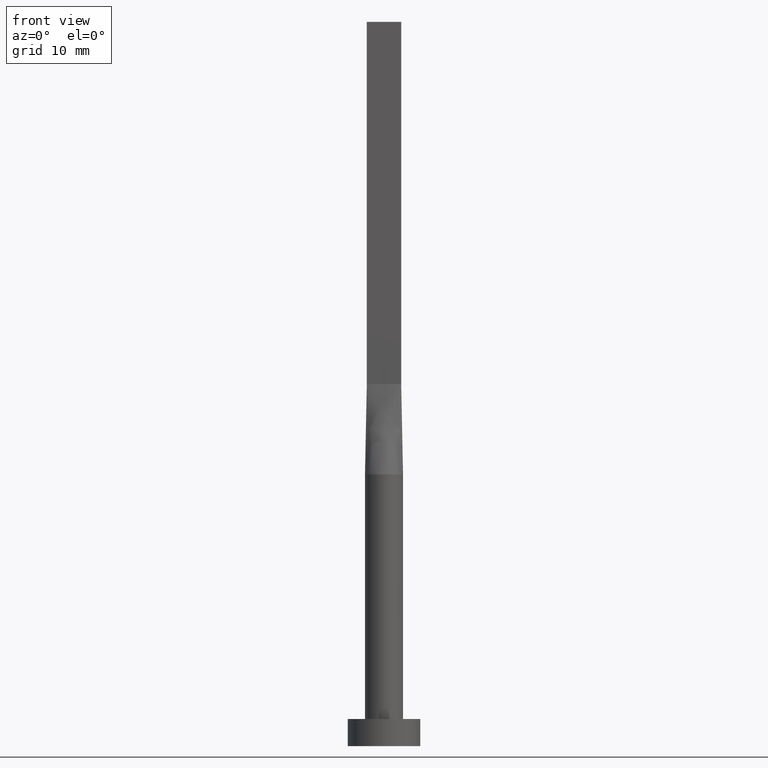
[diagram: clean part render]
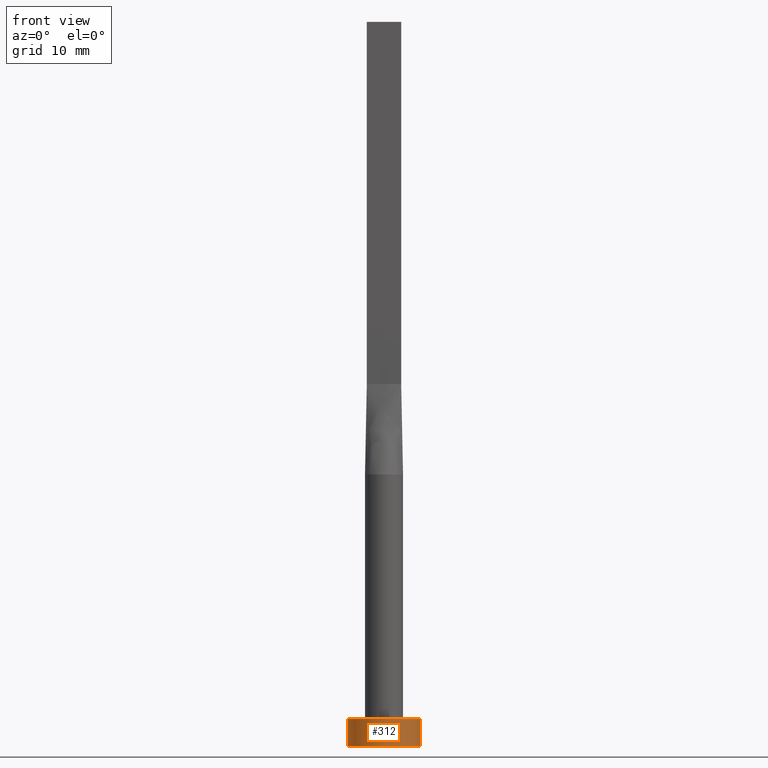
[diagram: same view with one face highlighted and labeled with its STEP entity id]
A machine part, front view. The second image highlights one B-rep face of the part: STEP entity #312.
In plain terms, the highlighted cylindrical surface (edge-blend (fillet) strip) has radius 4 mm, axis along (-0, -0, -1).
Its self-contained STEP definition (entity closure, byte-faithful):
#16 = EDGE_CURVE ( 'NONE', #403, #443, #371, .T. ) ;
#20 = VERTEX_POINT ( 'NONE', #274 ) ;
#30 = ORIENTED_EDGE ( 'NONE', *, *, #16, .F. ) ;
#33 = CARTESIAN_POINT ( 'NONE',  ( 0.000000000000000000, 0.000000000000000000, 3.000000000000000000 ) ) ;
#78 = CIRCLE ( 'NONE', #180, 4.000000000000000000 ) ;
#89 = DIRECTION ( 'NONE',  ( 1.000000000000000000, 0.000000000000000000, 0.000000000000000000 ) ) ;
#97 = CARTESIAN_POINT ( 'NONE',  ( 4.000000000000000000, 4.898587196589412829E-16, 3.000000000000000000 ) ) ;
#120 = VERTEX_POINT ( 'NONE', #336 ) ;
#129 = CARTESIAN_POINT ( 'NONE',  ( -4.000000000000000000, 0.000000000000000000, 3.000000000000000000 ) ) ;
#155 = LINE ( 'NONE', #129, #234 ) ;
#167 = AXIS2_PLACEMENT_3D ( 'NONE', #315, #494, #310 ) ;
#180 = AXIS2_PLACEMENT_3D ( 'NONE', #352, #410, #236 ) ;
#218 = CARTESIAN_POINT ( 'NONE',  ( 4.000000000000000000, 4.898587196589412829E-16, 3.000000000000000000 ) ) ;
#223 = DIRECTION ( 'NONE',  ( -0.000000000000000000, -0.000000000000000000, -1.000000000000000000 ) ) ;
#234 = VECTOR ( 'NONE', #223, 1000.000000000000000 ) ;
#236 = DIRECTION ( 'NONE',  ( 1.000000000000000000, 0.000000000000000000, 0.000000000000000000 ) ) ;
#237 = CARTESIAN_POINT ( 'NONE',  ( -4.000000000000000000, 0.000000000000000000, 3.000000000000000000 ) ) ;
#274 = CARTESIAN_POINT ( 'NONE',  ( -4.000000000000000000, 0.000000000000000000, 0.000000000000000000 ) ) ;
#301 = EDGE_CURVE ( 'NONE', #20, #120, #78, .T. ) ;
#310 = DIRECTION ( 'NONE',  ( -1.000000000000000000, 0.000000000000000000, 0.000000000000000000 ) ) ;
#312 = ADVANCED_FACE ( 'NONE', ( #356 ), #360, .T. ) ;
#315 = CARTESIAN_POINT ( 'NONE',  ( 0.000000000000000000, 0.000000000000000000, 3.000000000000000000 ) ) ;
#336 = CARTESIAN_POINT ( 'NONE',  ( 4.000000000000000000, 4.898587196589412829E-16, 0.000000000000000000 ) ) ;
#348 = EDGE_LOOP ( 'NONE', ( #509, #30, #390, #388 ) ) ;
#352 = CARTESIAN_POINT ( 'NONE',  ( 0.000000000000000000, 0.000000000000000000, 0.000000000000000000 ) ) ;
#356 = FACE_OUTER_BOUND ( 'NONE', #348, .T. ) ;
#360 = CYLINDRICAL_SURFACE ( 'NONE', #167, 4.000000000000000000 ) ;
#371 = CIRCLE ( 'NONE', #458, 4.000000000000000000 ) ;
#388 = ORIENTED_EDGE ( 'NONE', *, *, #301, .T. ) ;
#390 = ORIENTED_EDGE ( 'NONE', *, *, #540, .T. ) ;
#392 = DIRECTION ( 'NONE',  ( -0.000000000000000000, -0.000000000000000000, -1.000000000000000000 ) ) ;
#403 = VERTEX_POINT ( 'NONE', #237 ) ;
#410 = DIRECTION ( 'NONE',  ( 0.000000000000000000, 0.000000000000000000, 1.000000000000000000 ) ) ;
#443 = VERTEX_POINT ( 'NONE', #97 ) ;
#451 = DIRECTION ( 'NONE',  ( 0.000000000000000000, 0.000000000000000000, 1.000000000000000000 ) ) ;
#458 = AXIS2_PLACEMENT_3D ( 'NONE', #33, #451, #89 ) ;
#489 = LINE ( 'NONE', #218, #551 ) ;
#494 = DIRECTION ( 'NONE',  ( -0.000000000000000000, -0.000000000000000000, -1.000000000000000000 ) ) ;
#509 = ORIENTED_EDGE ( 'NONE', *, *, #575, .F. ) ;
#540 = EDGE_CURVE ( 'NONE', #403, #20, #155, .T. ) ;
#551 = VECTOR ( 'NONE', #392, 1000.000000000000000 ) ;
#575 = EDGE_CURVE ( 'NONE', #443, #120, #489, .T. ) ;